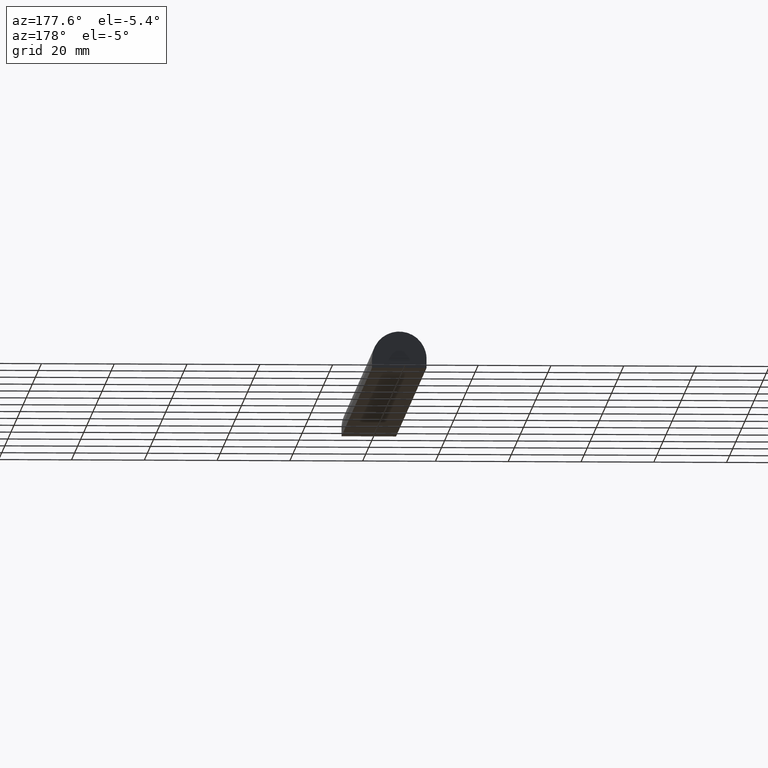
[diagram: clean part render]
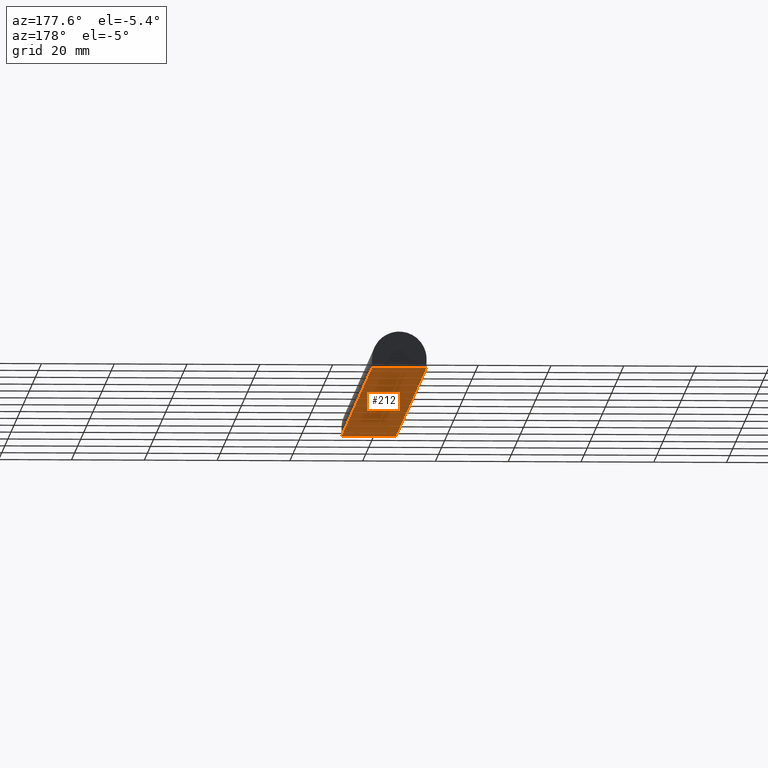
[diagram: same view with one face highlighted and labeled with its STEP entity id]
A machine part, auxiliary view. The second image highlights one B-rep face of the part: STEP entity #212.
In plain terms, the highlighted face is a freeform B-spline surface patch.
Its self-contained STEP definition (entity closure, byte-faithful):
#49=CARTESIAN_POINT('',(-7.500000000000000,0.0,-5.0));
#50=VERTEX_POINT('',#49);
#51=CARTESIAN_POINT('',(7.500000000000000,0.0,-5.0));
#52=VERTEX_POINT('',#51);
#53=CARTESIAN_POINT('',(-7.500000000000000,0.0,-5.0));
#54=CARTESIAN_POINT('',(7.500000000000000,0.0,-5.0));
#55=QUASI_UNIFORM_CURVE('',1,(#53,#54),.UNSPECIFIED.,.F.,.U.);
#56=EDGE_CURVE('',#50,#52,#55,.T.);
#95=CARTESIAN_POINT('',(-7.500000000000000,200.0,-5.0));
#96=VERTEX_POINT('',#95);
#97=CARTESIAN_POINT('',(7.500000000000000,200.0,-5.0));
#98=VERTEX_POINT('',#97);
#99=CARTESIAN_POINT('',(-7.500000000000000,200.0,-5.0));
#100=CARTESIAN_POINT('',(7.500000000000000,200.0,-5.0));
#101=QUASI_UNIFORM_CURVE('',1,(#99,#100),.UNSPECIFIED.,.F.,.U.);
#102=EDGE_CURVE('',#96,#98,#101,.T.);
#148=CARTESIAN_POINT('',(-7.500000000000000,200.0,-5.0));
#149=CARTESIAN_POINT('',(-7.500000000000000,0.0,-5.0));
#150=QUASI_UNIFORM_CURVE('',1,(#148,#149),.UNSPECIFIED.,.F.,.U.);
#151=EDGE_CURVE('',#96,#50,#150,.T.);
#191=CARTESIAN_POINT('',(7.500000000000000,200.0,-5.0));
#192=CARTESIAN_POINT('',(7.500000000000000,0.0,-5.0));
#193=QUASI_UNIFORM_CURVE('',1,(#191,#192),.UNSPECIFIED.,.F.,.U.);
#194=EDGE_CURVE('',#98,#52,#193,.T.);
#201=CARTESIAN_POINT('',(8.249249970927089,-9.989999612361194,-5.0));
#202=CARTESIAN_POINT('',(-8.249250373258443,-9.989999612361194,-5.0));
#203=CARTESIAN_POINT('',(8.249249970927089,209.990004976779200,-5.0));
#204=CARTESIAN_POINT('',(-8.249250373258443,209.990004976779200,-5.0));
#205=B_SPLINE_SURFACE_WITH_KNOTS('',1,1,((#201,#203),(#202,#204)),.UNSPECIFIED.,.F.,.F.,.U.,(2,2),(2,2),(0.0,16.498500344185530),(0.0,219.980004589140410),.UNSPECIFIED.);
#206=ORIENTED_EDGE('',*,*,#56,.F.);
#207=ORIENTED_EDGE('',*,*,#151,.F.);
#208=ORIENTED_EDGE('',*,*,#102,.T.);
#209=ORIENTED_EDGE('',*,*,#194,.T.);
#210=EDGE_LOOP('',(#206,#207,#208,#209));
#211=FACE_OUTER_BOUND('',#210,.T.);
#212=ADVANCED_FACE('',(#211),#205,.T.);